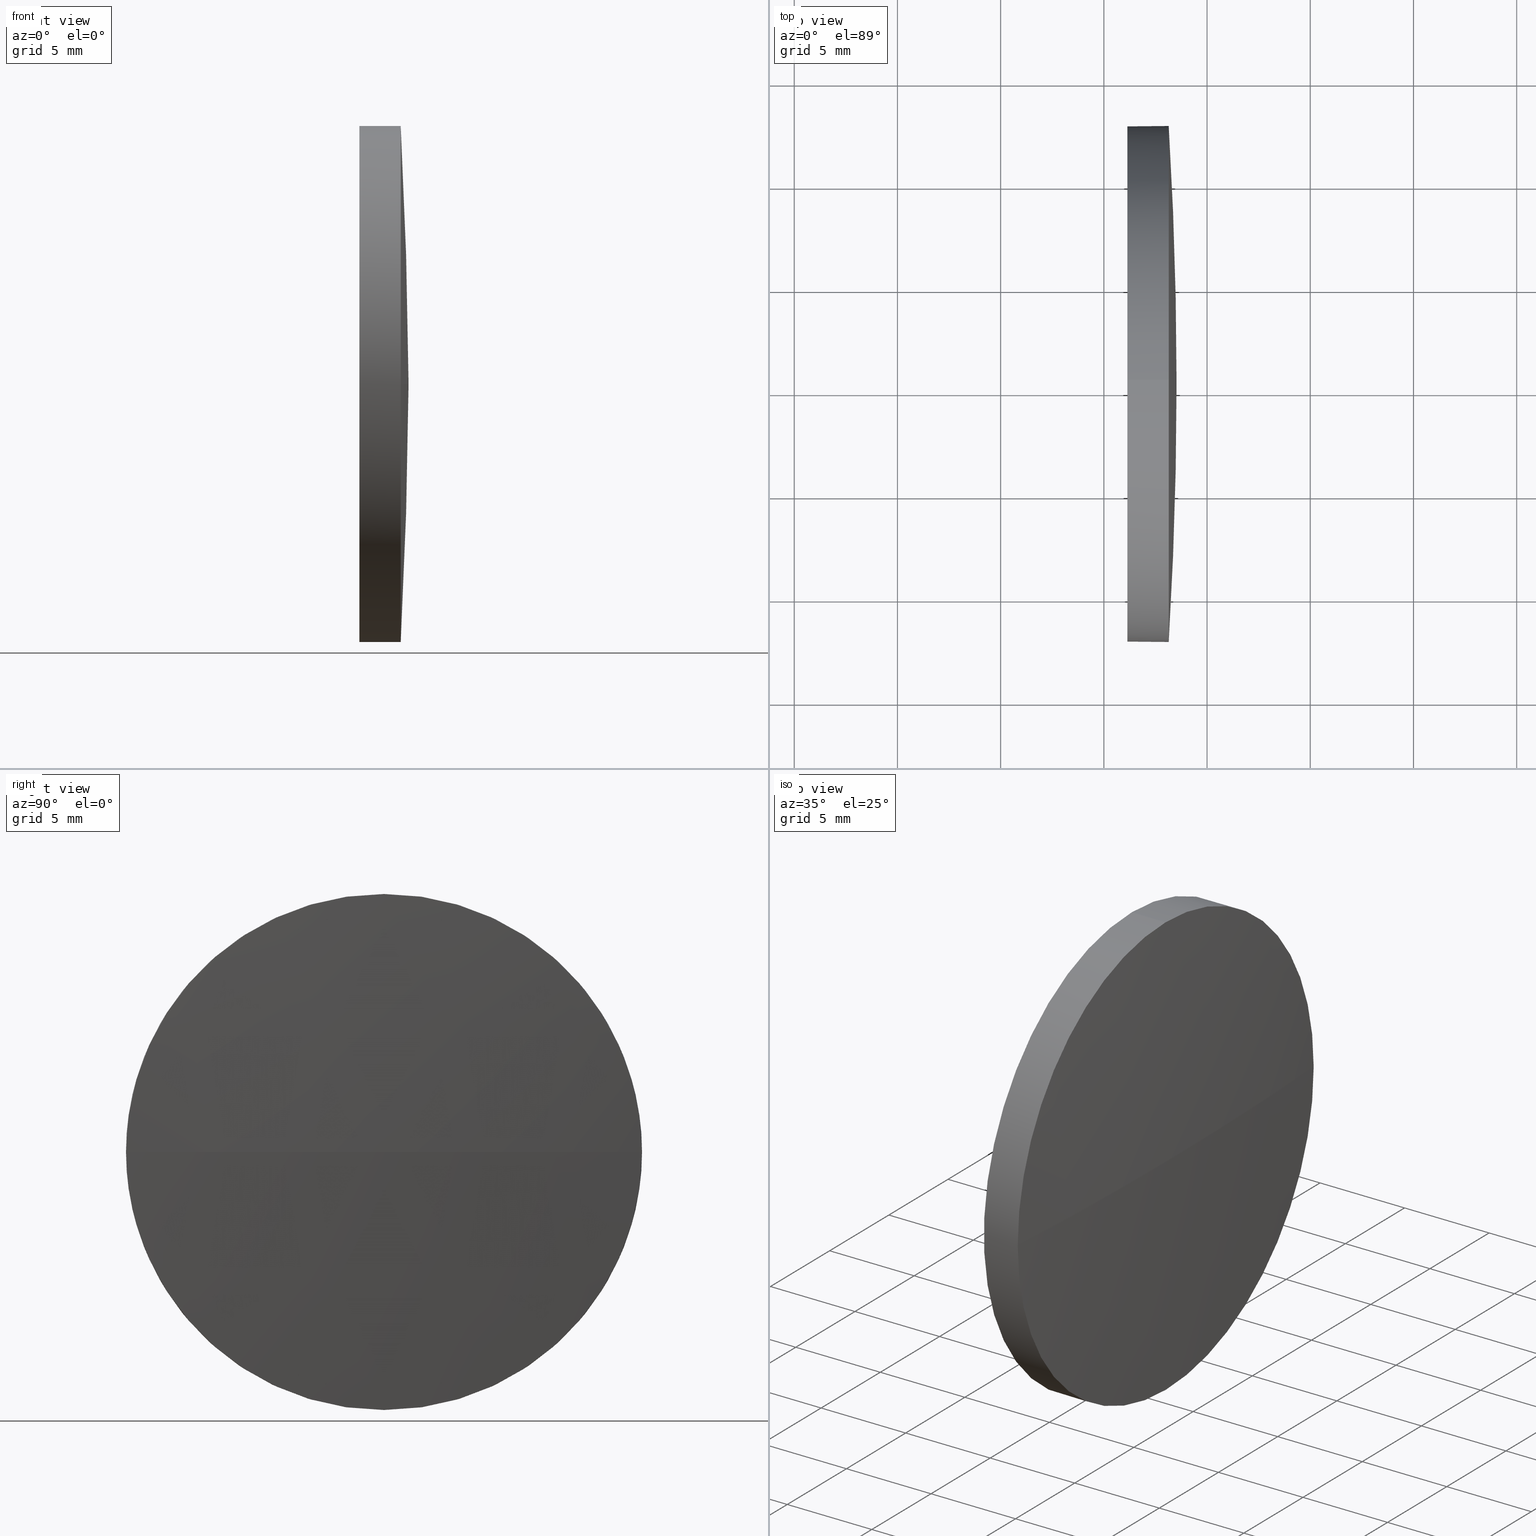
[diagram: canonical four-view strip — front | top / right | iso, engineering-drawing reading convention]
A machine part, canonical four-view strip (front | top / right | iso — engineering-drawing reading convention). The complete STEP part file that produces these views, byte-faithful:
ISO-10303-21;
HEADER;
FILE_DESCRIPTION (( 'STEP AP214' ),
    '1' );
FILE_NAME ('100050.STEP',
    '2019-04-29T09:41:46',
    ( '' ),
    ( '' ),
    'SwSTEP 2.0',
    'SolidWorks 2016',
    '' );
FILE_SCHEMA (( 'AUTOMOTIVE_DESIGN' ));
ENDSEC;

DATA;
#1 = DIRECTION ( 'NONE',  ( 1.000000000000000000, 0.0000000000000000000, 0.0000000000000000000 ) ) ;
#2 = MANIFOLD_SOLID_BREP ( '��ת1', #50 ) ;
#3 = ORIENTED_EDGE ( 'NONE', *, *, #93, .T. ) ;
#4 = ADVANCED_FACE ( 'NONE', ( #18 ), #179, .T. ) ;
#5 = ADVANCED_FACE ( 'NONE', ( #129 ), #138, .T. ) ;
#6 = CARTESIAN_POINT ( 'NONE',  ( 491.4000301772311400, 145.3379031391612800, 0.0000000000000000000 ) ) ;
#7 = ORIENTED_EDGE ( 'NONE', *, *, #93, .F. ) ;
#8 = CARTESIAN_POINT ( 'NONE',  ( 498.1420614191210300, 132.8379031391614300, 0.0000000000000000000 ) ) ;
#9 = ORIENTED_EDGE ( 'NONE', *, *, #164, .T. ) ;
#10 = CARTESIAN_POINT ( 'NONE',  ( 498.1420614191210300, 145.3379031391612800, 12.50000000000001100 ) ) ;
#11 = APPLICATION_CONTEXT ( 'automotive_design' ) ;
#12 = VERTEX_POINT ( 'NONE', #8 ) ;
#13 = FILL_AREA_STYLE_COLOUR ( '', #116 ) ;
#14 = FACE_OUTER_BOUND ( 'NONE', #43, .T. ) ;
#15 = AXIS2_PLACEMENT_3D ( 'NONE', #171, #183, #21 ) ;
#16 = EDGE_CURVE ( 'NONE', #163, #184, #170, .T. ) ;
#17 = PRODUCT_DEFINITION_FORMATION_WITH_SPECIFIED_SOURCE ( '�κ�', '', #133, .NOT_KNOWN. ) ;
#18 = FACE_OUTER_BOUND ( 'NONE', #165, .T. ) ;
#19 = ORIENTED_EDGE ( 'NONE', *, *, #88, .T. ) ;
#20 = DIRECTION ( 'NONE',  ( -1.000000000000000000, -0.0000000000000000000, -0.0000000000000000000 ) ) ;
#21 = DIRECTION ( 'NONE',  ( 0.0000000000000000000, 0.0000000000000000000, 1.000000000000000000 ) ) ;
#22 = CARTESIAN_POINT ( 'NONE',  ( 496.1420614191210300, 145.3379031391612800, 0.0000000000000000000 ) ) ;
#23 = ORIENTED_EDGE ( 'NONE', *, *, #84, .T. ) ;
#24 = CARTESIAN_POINT ( 'NONE',  ( 496.1420614191210300, 145.3379031391612800, 12.50000000000001100 ) ) ;
#25 = MECHANICAL_DESIGN_GEOMETRIC_PRESENTATION_REPRESENTATION (  '', ( #128 ), #117 ) ;
#26 = PRODUCT_DEFINITION_SHAPE ( 'NONE', 'NONE',  #87 ) ;
#27 = FACE_OUTER_BOUND ( 'NONE', #156, .T. ) ;
#28 = AXIS2_PLACEMENT_3D ( 'NONE', #97, #52, #37 ) ;
#29 = EDGE_CURVE ( 'NONE', #35, #163, #166, .T. ) ;
#30 = AXIS2_PLACEMENT_3D ( 'NONE', #155, #79, #137 ) ;
#31 = FILL_AREA_STYLE ('',( #90 ) ) ;
#32 = STYLED_ITEM ( 'NONE', ( #176 ), #78 ) ;
#33 = CARTESIAN_POINT ( 'NONE',  ( 292.7399561559625500, 145.3379031391614500, 0.0000000000000000000 ) ) ;
#34 = CARTESIAN_POINT ( 'NONE',  ( 498.1420614191210300, 145.3379031391612800, 0.0000000000000000000 ) ) ;
#35 = VERTEX_POINT ( 'NONE', #141 ) ;
#36 = SHAPE_DEFINITION_REPRESENTATION ( #26, #78 ) ;
#37 = DIRECTION ( 'NONE',  ( -1.000000000000000000, 0.0000000000000000000, 0.0000000000000000000 ) ) ;
#38 = CARTESIAN_POINT ( 'NONE',  ( 292.7399561559625500, 145.3379031391614500, 0.0000000000000000000 ) ) ;
#39 = ORIENTED_EDGE ( 'NONE', *, *, #181, .T. ) ;
#40 =( LENGTH_UNIT ( ) NAMED_UNIT ( * ) SI_UNIT ( .MILLI., .METRE. ) );
#41 = DIRECTION ( 'NONE',  ( 0.0000000000000000000, 0.0000000000000000000, 1.000000000000000000 ) ) ;
#42 = AXIS2_PLACEMENT_3D ( 'NONE', #177, #82, #145 ) ;
#43 = EDGE_LOOP ( 'NONE', ( #121, #74, #76, #7 ) ) ;
#44 = SPHERICAL_SURFACE ( 'NONE', #69, 205.7821052631584800 ) ;
#45 = SURFACE_SIDE_STYLE ('',( #113 ) ) ;
#46 = MECHANICAL_DESIGN_GEOMETRIC_PRESENTATION_REPRESENTATION (  '', ( #32 ), #103 ) ;
#47 = COLOUR_RGB ( '',1.000000000000000000, 1.000000000000000000, 1.000000000000000000 ) ;
#48 = ORIENTED_EDGE ( 'NONE', *, *, #84, .F. ) ;
#49 = AXIS2_PLACEMENT_3D ( 'NONE', #22, #127, #53 ) ;
#50 = CLOSED_SHELL ( 'NONE', ( #5, #4, #149, #178, #180 ) ) ;
#51 = AXIS2_PLACEMENT_3D ( 'NONE', #112, #20, #110 ) ;
#52 = DIRECTION ( 'NONE',  ( 0.0000000000000000000, 0.0000000000000000000, -1.000000000000000000 ) ) ;
#53 = DIRECTION ( 'NONE',  ( 0.0000000000000000000, 0.0000000000000000000, 1.000000000000000000 ) ) ;
#54 = CIRCLE ( 'NONE', #15, 12.50000000000001100 ) ;
#55 = DIRECTION ( 'NONE',  ( 0.0000000000000000000, 0.0000000000000000000, 1.000000000000000000 ) ) ;
#56 = DIRECTION ( 'NONE',  ( -1.000000000000000000, -0.0000000000000000000, -0.0000000000000000000 ) ) ;
#57 = APPLICATION_PROTOCOL_DEFINITION ( 'draft international standard', 'automotive_design', 1998, #158 ) ;
#58 = CARTESIAN_POINT ( 'NONE',  ( 496.1420614191210300, 145.3379031391612800, 0.0000000000000000000 ) ) ;
#59 = AXIS2_PLACEMENT_3D ( 'NONE', #33, #106, #63 ) ;
#60 = CIRCLE ( 'NONE', #91, 12.50000000000001100 ) ;
#61 = EDGE_LOOP ( 'NONE', ( #3, #73, #48, #102, #19 ) ) ;
#62 = LINE ( 'NONE', #162, #132 ) ;
#63 = DIRECTION ( 'NONE',  ( 0.0000000000000000000, -1.000000000000000000, 0.0000000000000000000 ) ) ;
#64 =( LENGTH_UNIT ( ) NAMED_UNIT ( * ) SI_UNIT ( .MILLI., .METRE. ) );
#65 = VERTEX_POINT ( 'NONE', #10 ) ;
#66 = DIRECTION ( 'NONE',  ( 0.0000000000000000000, 0.0000000000000000000, 1.000000000000000000 ) ) ;
#67 = CARTESIAN_POINT ( 'NONE',  ( 491.4000301772311400, 145.3379031391612800, 0.0000000000000000000 ) ) ;
#68 =( NAMED_UNIT ( * ) PLANE_ANGLE_UNIT ( ) SI_UNIT ( $, .RADIAN. ) );
#69 = AXIS2_PLACEMENT_3D ( 'NONE', #38, #66, #140 ) ;
#70 = ORIENTED_EDGE ( 'NONE', *, *, #86, .F. ) ;
#71 = APPLICATION_PROTOCOL_DEFINITION ( 'draft international standard', 'automotive_design', 1998, #11 ) ;
#72 = AXIS2_PLACEMENT_3D ( 'NONE', #6, #75, #139 ) ;
#73 = ORIENTED_EDGE ( 'NONE', *, *, #29, .T. ) ;
#74 = ORIENTED_EDGE ( 'NONE', *, *, #86, .T. ) ;
#75 = DIRECTION ( 'NONE',  ( -1.000000000000000000, -0.0000000000000000000, -0.0000000000000000000 ) ) ;
#76 = ORIENTED_EDGE ( 'NONE', *, *, #173, .F. ) ;
#77 = CIRCLE ( 'NONE', #51, 12.50000000000001100 ) ;
#78 = ADVANCED_BREP_SHAPE_REPRESENTATION ( '100050', ( #2, #131 ), #92 ) ;
#79 = DIRECTION ( 'NONE',  ( 0.0000000000000000000, -1.224646799147353200E-016, 1.000000000000000000 ) ) ;
#80 = DIRECTION ( 'NONE',  ( 0.0000000000000000000, 0.0000000000000000000, 1.000000000000000000 ) ) ;
#81 = AXIS2_PLACEMENT_3D ( 'NONE', #58, #1, #100 ) ;
#82 = DIRECTION ( 'NONE',  ( -1.000000000000000000, -0.0000000000000000000, -0.0000000000000000000 ) ) ;
#83 = CARTESIAN_POINT ( 'NONE',  ( 0.0000000000000000000, 0.0000000000000000000, 0.0000000000000000000 ) ) ;
#84 = EDGE_CURVE ( 'NONE', #184, #163, #89, .T. ) ;
#85 = DIRECTION ( 'NONE',  ( -1.000000000000000000, -0.0000000000000000000, -0.0000000000000000000 ) ) ;
#86 = EDGE_CURVE ( 'NONE', #115, #12, #120, .T. ) ;
#87 = PRODUCT_DEFINITION ( 'δ֪', '', #17, #161 ) ;
#88 = EDGE_CURVE ( 'NONE', #65, #143, #77, .T. ) ;
#89 = CIRCLE ( 'NONE', #124, 12.50000000000001100 ) ;
#90 = FILL_AREA_STYLE_COLOUR ( '', #47 ) ;
#91 = AXIS2_PLACEMENT_3D ( 'NONE', #34, #56, #55 ) ;
#92 =( GEOMETRIC_REPRESENTATION_CONTEXT ( 3 ) GLOBAL_UNCERTAINTY_ASSIGNED_CONTEXT ( ( #94 ) ) GLOBAL_UNIT_ASSIGNED_CONTEXT ( ( #40, #146, #101 ) ) REPRESENTATION_CONTEXT ( 'NONE', 'WORKASPACE' ) );
#93 = EDGE_CURVE ( 'NONE', #143, #35, #54, .T. ) ;
#94 = UNCERTAINTY_MEASURE_WITH_UNIT (LENGTH_MEASURE( 1.000000000000000100E-005 ), #40, 'distance_accuracy_value', 'NONE');
#95 = DIRECTION ( 'NONE',  ( 0.0000000000000000000, 0.0000000000000000000, 1.000000000000000000 ) ) ;
#96 = FACE_OUTER_BOUND ( 'NONE', #99, .T. ) ;
#97 = CARTESIAN_POINT ( 'NONE',  ( 292.7399561559625500, 145.3379031391614500, 0.0000000000000000000 ) ) ;
#98 = CARTESIAN_POINT ( 'NONE',  ( 496.1420614191210300, 145.3379031391612800, 0.0000000000000000000 ) ) ;
#99 = EDGE_LOOP ( 'NONE', ( #23, #151 ) ) ;
#100 = DIRECTION ( 'NONE',  ( 0.0000000000000000000, 0.0000000000000000000, -1.000000000000000000 ) ) ;
#101 =( NAMED_UNIT ( * ) SI_UNIT ( $, .STERADIAN. ) SOLID_ANGLE_UNIT ( ) );
#102 = ORIENTED_EDGE ( 'NONE', *, *, #181, .F. ) ;
#103 =( GEOMETRIC_REPRESENTATION_CONTEXT ( 3 ) GLOBAL_UNCERTAINTY_ASSIGNED_CONTEXT ( ( #108 ) ) GLOBAL_UNIT_ASSIGNED_CONTEXT ( ( #114, #68, #144 ) ) REPRESENTATION_CONTEXT ( 'NONE', 'WORKASPACE' ) );
#104 = CIRCLE ( 'NONE', #42, 12.50000000000001100 ) ;
#105 = CYLINDRICAL_SURFACE ( 'NONE', #154, 12.50000000000001100 ) ;
#106 = DIRECTION ( 'NONE',  ( 0.0000000000000000000, 0.0000000000000000000, 1.000000000000000000 ) ) ;
#107 = PRESENTATION_LAYER_ASSIGNMENT (  '', '', ( #32 ) ) ;
#108 = UNCERTAINTY_MEASURE_WITH_UNIT (LENGTH_MEASURE( 1.000000000000000100E-005 ), #114, 'distance_accuracy_value', 'NONE');
#109 = DIRECTION ( 'NONE',  ( -1.000000000000000000, -0.0000000000000000000, -0.0000000000000000000 ) ) ;
#110 = DIRECTION ( 'NONE',  ( 0.0000000000000000000, 0.0000000000000000000, 1.000000000000000000 ) ) ;
#111 = EDGE_CURVE ( 'NONE', #12, #65, #60, .T. ) ;
#112 = CARTESIAN_POINT ( 'NONE',  ( 498.1420614191210300, 145.3379031391612800, 0.0000000000000000000 ) ) ;
#113 = SURFACE_STYLE_FILL_AREA ( #174 ) ;
#114 =( LENGTH_UNIT ( ) NAMED_UNIT ( * ) SI_UNIT ( .MILLI., .METRE. ) );
#115 = VERTEX_POINT ( 'NONE', #157 ) ;
#116 = COLOUR_RGB ( '',1.000000000000000000, 1.000000000000000000, 1.000000000000000000 ) ;
#117 =( GEOMETRIC_REPRESENTATION_CONTEXT ( 3 ) GLOBAL_UNCERTAINTY_ASSIGNED_CONTEXT ( ( #159 ) ) GLOBAL_UNIT_ASSIGNED_CONTEXT ( ( #64, #167, #135 ) ) REPRESENTATION_CONTEXT ( 'NONE', 'WORKASPACE' ) );
#118 = DIRECTION ( 'NONE',  ( -1.000000000000000000, -0.0000000000000000000, -0.0000000000000000000 ) ) ;
#119 = ORIENTED_EDGE ( 'NONE', *, *, #111, .T. ) ;
#120 = CIRCLE ( 'NONE', #28, 205.7821052631584800 ) ;
#121 = ORIENTED_EDGE ( 'NONE', *, *, #164, .F. ) ;
#122 = SURFACE_SIDE_STYLE ('',( #175 ) ) ;
#123 = DIRECTION ( 'NONE',  ( -1.000000000000000000, -0.0000000000000000000, -0.0000000000000000000 ) ) ;
#124 = AXIS2_PLACEMENT_3D ( 'NONE', #98, #123, #95 ) ;
#125 = CARTESIAN_POINT ( 'NONE',  ( 491.4000301772311400, 145.3379031391612800, -12.50000000000001100 ) ) ;
#126 = ORIENTED_EDGE ( 'NONE', *, *, #88, .F. ) ;
#127 = DIRECTION ( 'NONE',  ( -1.000000000000000000, -0.0000000000000000000, -0.0000000000000000000 ) ) ;
#128 = STYLED_ITEM ( 'NONE', ( #130 ), #2 ) ;
#129 = FACE_OUTER_BOUND ( 'NONE', #61, .T. ) ;
#130 = PRESENTATION_STYLE_ASSIGNMENT (( #134 ) ) ;
#131 = AXIS2_PLACEMENT_3D ( 'NONE', #83, #80, #185 ) ;
#132 = VECTOR ( 'NONE', #118, 1000.000000000000000 ) ;
#133 = PRODUCT ( '100050', '100050', '', ( #186 ) ) ;
#134 = SURFACE_STYLE_USAGE ( .BOTH. , #122 ) ;
#135 =( NAMED_UNIT ( * ) SI_UNIT ( $, .STERADIAN. ) SOLID_ANGLE_UNIT ( ) );
#136 = PRESENTATION_LAYER_ASSIGNMENT (  '', '', ( #128 ) ) ;
#137 = DIRECTION ( 'NONE',  ( 0.0000000000000000000, -1.000000000000000000, -1.224646799147353200E-016 ) ) ;
#138 = CYLINDRICAL_SURFACE ( 'NONE', #72, 12.50000000000001100 ) ;
#139 = DIRECTION ( 'NONE',  ( 0.0000000000000000000, 0.0000000000000000000, 1.000000000000000000 ) ) ;
#140 = DIRECTION ( 'NONE',  ( 0.0000000000000000000, -1.000000000000000000, 0.0000000000000000000 ) ) ;
#141 = CARTESIAN_POINT ( 'NONE',  ( 498.1420614191210300, 145.3379031391612800, -12.50000000000001100 ) ) ;
#142 = PLANE ( 'NONE',  #81 ) ;
#143 = VERTEX_POINT ( 'NONE', #169 ) ;
#144 =( NAMED_UNIT ( * ) SI_UNIT ( $, .STERADIAN. ) SOLID_ANGLE_UNIT ( ) );
#145 = DIRECTION ( 'NONE',  ( 0.0000000000000000000, 0.0000000000000000000, 1.000000000000000000 ) ) ;
#146 =( NAMED_UNIT ( * ) PLANE_ANGLE_UNIT ( ) SI_UNIT ( $, .RADIAN. ) );
#147 = VECTOR ( 'NONE', #109, 1000.000000000000000 ) ;
#148 = SURFACE_STYLE_USAGE ( .BOTH. , #45 ) ;
#149 = ADVANCED_FACE ( 'NONE', ( #14 ), #44, .T. ) ;
#150 = ORIENTED_EDGE ( 'NONE', *, *, #29, .F. ) ;
#151 = ORIENTED_EDGE ( 'NONE', *, *, #16, .T. ) ;
#152 = PRODUCT_RELATED_PRODUCT_CATEGORY ( 'part', '', ( #133 ) ) ;
#153 = ORIENTED_EDGE ( 'NONE', *, *, #111, .F. ) ;
#154 = AXIS2_PLACEMENT_3D ( 'NONE', #67, #85, #41 ) ;
#155 = CARTESIAN_POINT ( 'NONE',  ( 292.7399561559625500, 145.3379031391614500, 0.0000000000000000000 ) ) ;
#156 = EDGE_LOOP ( 'NONE', ( #150, #168, #119, #39, #160 ) ) ;
#157 = CARTESIAN_POINT ( 'NONE',  ( 498.5220614191210300, 145.3379031391614500, 0.0000000000000000000 ) ) ;
#158 = APPLICATION_CONTEXT ( 'automotive_design' ) ;
#159 = UNCERTAINTY_MEASURE_WITH_UNIT (LENGTH_MEASURE( 1.000000000000000100E-005 ), #64, 'distance_accuracy_value', 'NONE');
#160 = ORIENTED_EDGE ( 'NONE', *, *, #16, .F. ) ;
#161 = PRODUCT_DEFINITION_CONTEXT ( 'detailed design', #11, 'design' ) ;
#162 = CARTESIAN_POINT ( 'NONE',  ( 491.4000301772311400, 145.3379031391612800, 12.50000000000001100 ) ) ;
#163 = VERTEX_POINT ( 'NONE', #172 ) ;
#164 = EDGE_CURVE ( 'NONE', #115, #143, #182, .T. ) ;
#165 = EDGE_LOOP ( 'NONE', ( #70, #9, #126, #153 ) ) ;
#166 = LINE ( 'NONE', #125, #147 ) ;
#167 =( NAMED_UNIT ( * ) PLANE_ANGLE_UNIT ( ) SI_UNIT ( $, .RADIAN. ) );
#168 = ORIENTED_EDGE ( 'NONE', *, *, #173, .T. ) ;
#169 = CARTESIAN_POINT ( 'NONE',  ( 498.1420614191210300, 157.8379031391612800, 1.530808498934174600E-015 ) ) ;
#170 = CIRCLE ( 'NONE', #49, 12.50000000000001100 ) ;
#171 = CARTESIAN_POINT ( 'NONE',  ( 498.1420614191210300, 145.3379031391612800, 0.0000000000000000000 ) ) ;
#172 = CARTESIAN_POINT ( 'NONE',  ( 496.1420614191210300, 145.3379031391612800, -12.50000000000001100 ) ) ;
#173 = EDGE_CURVE ( 'NONE', #35, #12, #104, .T. ) ;
#174 = FILL_AREA_STYLE ('',( #13 ) ) ;
#175 = SURFACE_STYLE_FILL_AREA ( #31 ) ;
#176 = PRESENTATION_STYLE_ASSIGNMENT (( #148 ) ) ;
#177 = CARTESIAN_POINT ( 'NONE',  ( 498.1420614191210300, 145.3379031391612800, 0.0000000000000000000 ) ) ;
#178 = ADVANCED_FACE ( 'NONE', ( #27 ), #105, .T. ) ;
#179 = SPHERICAL_SURFACE ( 'NONE', #59, 205.7821052631584800 ) ;
#180 = ADVANCED_FACE ( 'NONE', ( #96 ), #142, .F. ) ;
#181 = EDGE_CURVE ( 'NONE', #65, #184, #62, .T. ) ;
#182 = CIRCLE ( 'NONE', #30, 205.7821052631584800 ) ;
#183 = DIRECTION ( 'NONE',  ( -1.000000000000000000, -0.0000000000000000000, -0.0000000000000000000 ) ) ;
#184 = VERTEX_POINT ( 'NONE', #24 ) ;
#185 = DIRECTION ( 'NONE',  ( 1.000000000000000000, 0.0000000000000000000, 0.0000000000000000000 ) ) ;
#186 = PRODUCT_CONTEXT ( 'NONE', #158, 'mechanical' ) ;
ENDSEC;
END-ISO-10303-21;
